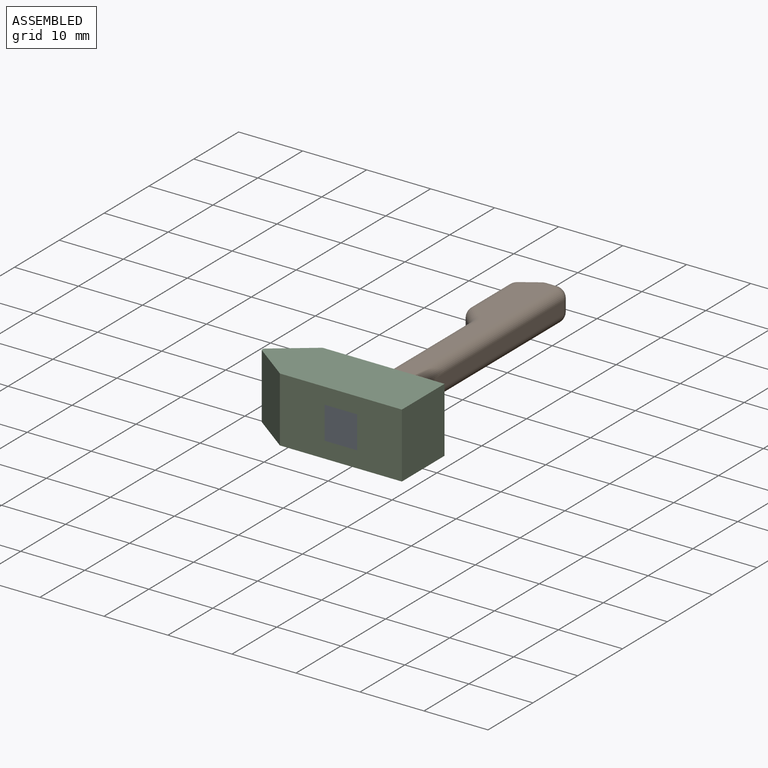
[diagram: assembled view]
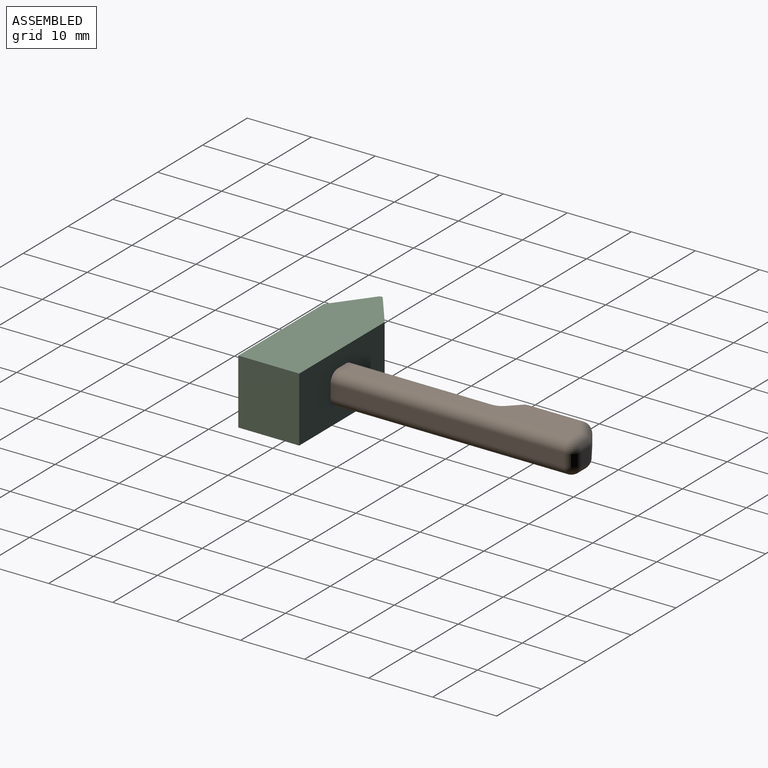
[diagram: assembled view, second angle]
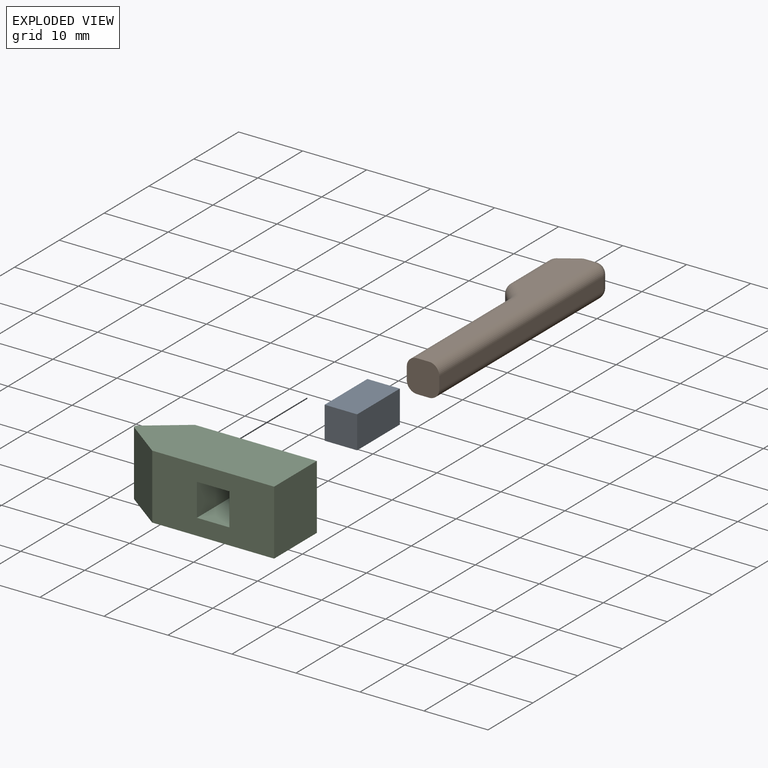
[diagram: exploded view]
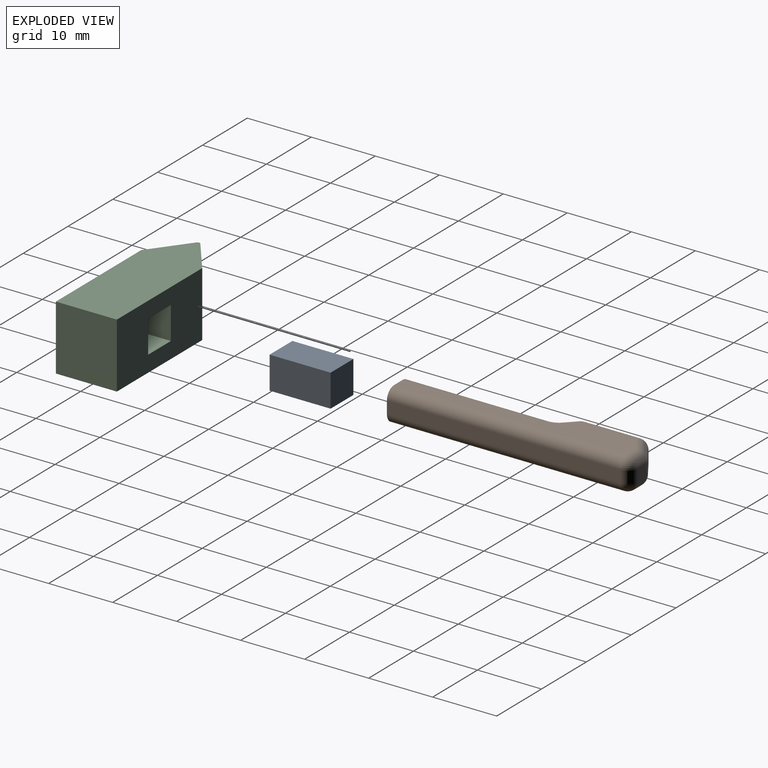
[diagram: exploded view, second angle]
ASSEMBLY  parts=3 mates=2
PART A: 6 faces, bbox 9.5x5.1x5.1 mm
  f0: plane 9.53x5.08mm, normal (0,1,0), area 48.4mm2, adj f1,f3,f4,f5
  f1: plane 5.08x5.08mm, normal (-1,0,0), area 25.8mm2, adj f0,f2,f4,f5
  f2: plane 9.53x5.08mm, normal (0,-1,0), area 48.4mm2, adj f1,f3,f4,f5
  f3: plane 5.08x5.08mm, normal (1,0,0), area 25.8mm2, adj f0,f2,f4,f5
  f4: plane 9.53x5.08mm, normal (0,0,1), area 48.4mm2, adj f0,f1,f2,f3
  f5: plane 9.53x5.08mm, normal (0,0,-1), area 48.4mm2, adj f0,f1,f2,f3
PART B: 36 faces, bbox 38.1x7.6x5.1 mm
  f0: plane 36.51x1.91mm, normal (0,1,0), area 69.6mm2, adj f6,f19,f23,f24
  f1: plane 1.91x1.74mm, normal (-1,0,0), area 3.3mm2, adj f24,f29,f32,f35
  f2: plane 2.7x1.91mm, normal (-0.83,-0.55,0), area 6.2mm2, adj f21,f30,f31,f35
  f3: plane 8.65x1.91mm, normal (0,-1,0), area 16.5mm2, adj f15,f20,f21,f22
  f4: plane 1.91x1.61mm, normal (0.71,-0.71,0), area 4.3mm2, adj f10,f14,f15,f16
  f5: plane 22.2x1.91mm, normal (0,-1,0), area 42.3mm2, adj f6,f9,f10,f11
  f6: plane 5.08x5.08mm, normal (1,0,0), area 23.6mm2, adj f0,f5,f7,f8,f9,f11,f19,f23
  f7: plane 36.51x4.45mm, normal (0,0,1), area 97.1mm2, adj f6,f9,f12,f14,f19,f20,f29,f30
  f8: plane 36.51x4.45mm, normal (0,0,-1), area 97.1mm2, adj f6,f11,f13,f16,f22,f23,f31,f32
  f9: cylinder r=1.59mm len=22.2mm, axis (-1,0,0), area 55.4mm2, adj f5,f6,f7,f12
  f10: cylinder r=1.59mm len=1.91mm, axis (0,0,1), area 2.4mm2, adj f4,f5,f12,f13
  f11: cylinder r=1.59mm len=22.2mm, axis (1,0,0), area 55.4mm2, adj f5,f6,f8,f13
  f12: torus R=3.17mm, axis (0,0,1), area 4.2mm2, adj f7,f9,f10,f14
  f13: torus R=3.17mm, axis (0,0,1), area 4.2mm2, adj f8,f10,f11,f16
  f14: cylinder r=1.59mm len=2.73mm, axis (-0.71,-0.71,0), area 5.7mm2, adj f4,f7,f12,f17
  f15: cylinder r=1.59mm len=1.91mm, axis (0,0,-1), area 2.4mm2, adj f3,f4,f17,f18
  f16: cylinder r=1.59mm len=2.73mm, axis (0.71,0.71,0), area 5.7mm2, adj f4,f8,f13,f18
  f17: sphere r=1.59mm, area 2mm2, adj f14,f15,f20
  f18: sphere r=1.59mm, area 2mm2, adj f15,f16,f22
  f19: cylinder r=1.59mm len=36.51mm, axis (1,0,0), area 91mm2, adj f0,f6,f7,f25
  f20: cylinder r=1.59mm len=8.65mm, axis (-1,0,0), area 21.6mm2, adj f3,f7,f17,f26
  f21: cylinder r=1.59mm len=1.91mm, axis (0,0,-1), area 3mm2, adj f2,f3,f26,f27
  f22: cylinder r=1.59mm len=8.65mm, axis (1,0,0), area 21.6mm2, adj f3,f8,f18,f27
  f23: cylinder r=1.59mm len=36.51mm, axis (-1,0,0), area 91mm2, adj f0,f6,f8,f28
  f24: cylinder r=1.59mm len=1.91mm, axis (0,0,1), area 4.8mm2, adj f0,f1,f25,f28
  f25: sphere r=1.59mm, area 4mm2, adj f19,f24,f29
  f26: sphere r=1.59mm, area 2.5mm2, adj f20,f21,f30
  f27: sphere r=1.59mm, area 2.5mm2, adj f21,f22,f31
  f28: sphere r=1.59mm, area 4mm2, adj f23,f24,f32
  f29: cylinder r=1.59mm len=1.74mm, axis (0,1,0), area 4.3mm2, adj f1,f7,f25,f33
  f30: cylinder r=1.59mm len=3.58mm, axis (-0.55,0.83,0), area 8.1mm2, adj f2,f7,f26,f33
  f31: cylinder r=1.59mm len=3.58mm, axis (0.55,-0.83,0), area 8.1mm2, adj f2,f8,f27,f34
  f32: cylinder r=1.59mm len=1.74mm, axis (0,-1,0), area 4.3mm2, adj f1,f8,f28,f34
  f33: sphere r=1.59mm, area 1.5mm2, adj f29,f30,f35
  f34: sphere r=1.59mm, area 1.5mm2, adj f31,f32,f35
  f35: cylinder r=1.59mm len=1.91mm, axis (0,0,-1), area 1.8mm2, adj f1,f2,f33,f34
PART C: 12 faces, bbox 25.1x9.5x10.2 mm
  f0: plane 19.05x10.16mm, normal (0,-1,0), area 167.7mm2, adj f2,f5,f6,f7,f8,f9,f10,f11
  f1: plane 19.05x10.16mm, normal (0,1,0), area 167.7mm2, adj f2,f3,f6,f7,f8,f9,f10,f11
  f2: plane 10.16x9.53mm, normal (1,0,0), area 96.8mm2, adj f0,f1,f6,f7
  f3: plane 10.16x5.93mm, normal (-0.6,0.8,0), area 75.3mm2, adj f1,f4,f6,f7
  f4: cylinder r=0.4mm len=10.16mm, axis (0,0,-1), area 7.5mm2, adj f3,f5,f6,f7
  f5: plane 10.16x5.93mm, normal (-0.6,-0.8,0), area 75.3mm2, adj f0,f4,f6,f7
  f6: plane 25.14x9.53mm, normal (0,0,1), area 211.6mm2, adj f0,f1,f2,f3,f4,f5
  f7: plane 25.14x9.53mm, normal (0,0,-1), area 211.6mm2, adj f0,f1,f2,f3,f4,f5
  f8: plane 9.53x5.08mm, normal (1,0,0), area 48.4mm2, adj f0,f1,f9,f11
  f9: plane 9.53x5.08mm, normal (0,0,-1), area 48.4mm2, adj f0,f1,f8,f10
  f10: plane 9.53x5.08mm, normal (-1,0,0), area 48.4mm2, adj f0,f1,f9,f11
  f11: plane 9.53x5.08mm, normal (0,0,1), area 48.4mm2, adj f0,f1,f8,f10
PLACE A rot(axis=(-0.58,-0.58,0.58),120deg) t=(-28.13,3.86,23.81)mm
PLACE B rot(axis=(0,0,-1),90deg) t=(-47.88,-37.17,4.06)mm
PLACE C t=(-46.55,-26.18,1.52)mm
MATE fastened B.f6 <-> A.f3  axis (0,-1,0) through (-30.67,-16.65,6.6)mm
MATE fastened A.f1 <-> C.f0  axis (0,-1,0) through (-30.67,-26.18,6.6)mm
